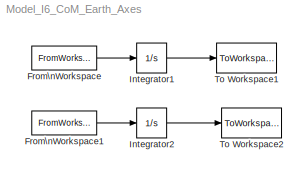
MODEL Model_I6_CoM_Earth_Axes
KIND model
BLOCK [FromWorkspace] From\nWorkspace
  SampleTime = dt
  VariableName = [t U_E]
BLOCK [FromWorkspace] From\nWorkspace1
  SampleTime = dt
  VariableName = [t W_E]
BLOCK [Integrator] Integrator1
  IgnoreLimit = off
  Ports = [1, 1]
BLOCK [Integrator] Integrator2
  IgnoreLimit = off
  Ports = [1, 1]
BLOCK [ToWorkspace] To Workspace1
  MaxDataPoints = inf
  SampleTime = dt
  SaveFormat = Array
  VariableName = X_E
BLOCK [ToWorkspace] To Workspace2
  MaxDataPoints = inf
  SampleTime = dt
  SaveFormat = Array
  VariableName = Z_E
LINE From\nWorkspace1:1 -> Integrator2:1
LINE From\nWorkspace:1 -> Integrator1:1
LINE Integrator1:1 -> To Workspace1:1
LINE Integrator2:1 -> To Workspace2:1
